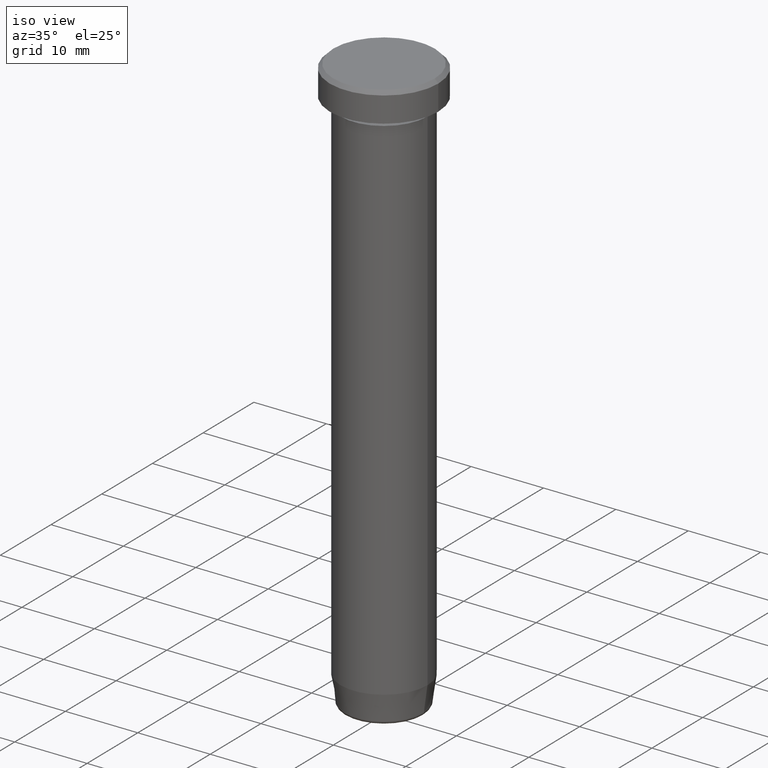
[diagram: clean part render]
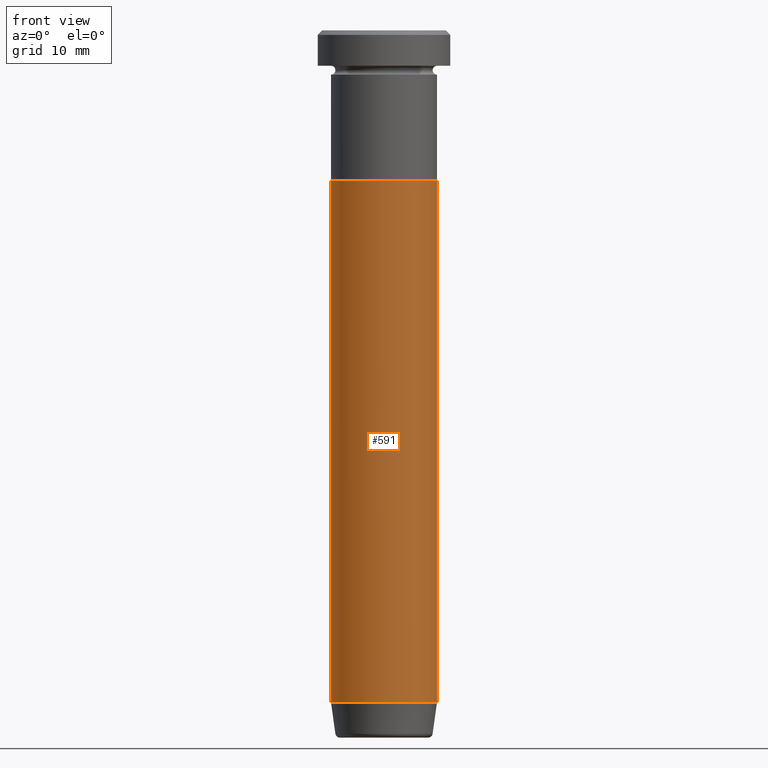
[diagram: tour spotlight — one face highlighted and labeled with its STEP entity id]
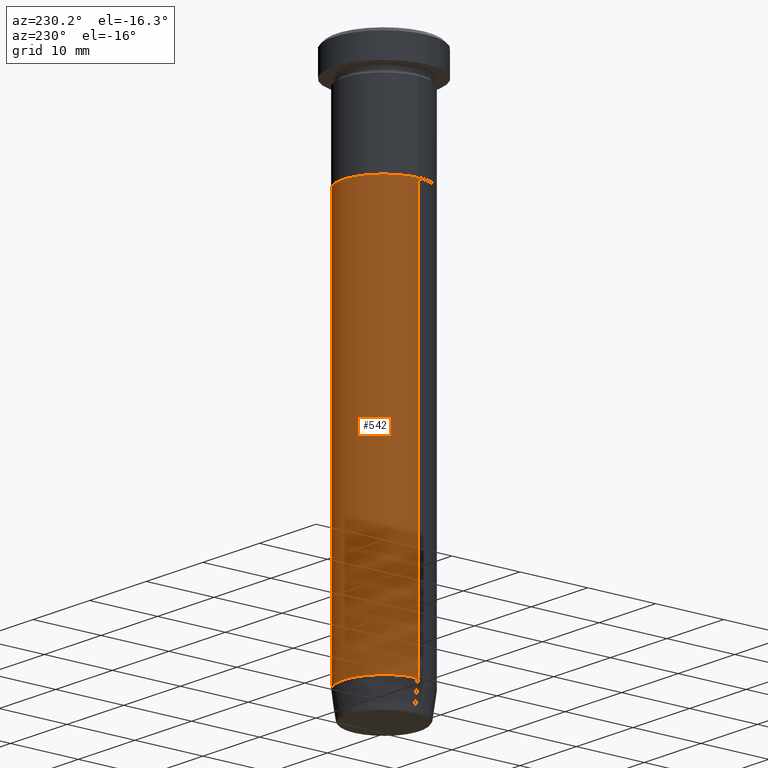
[diagram: tour spotlight — one face highlighted and labeled with its STEP entity id]
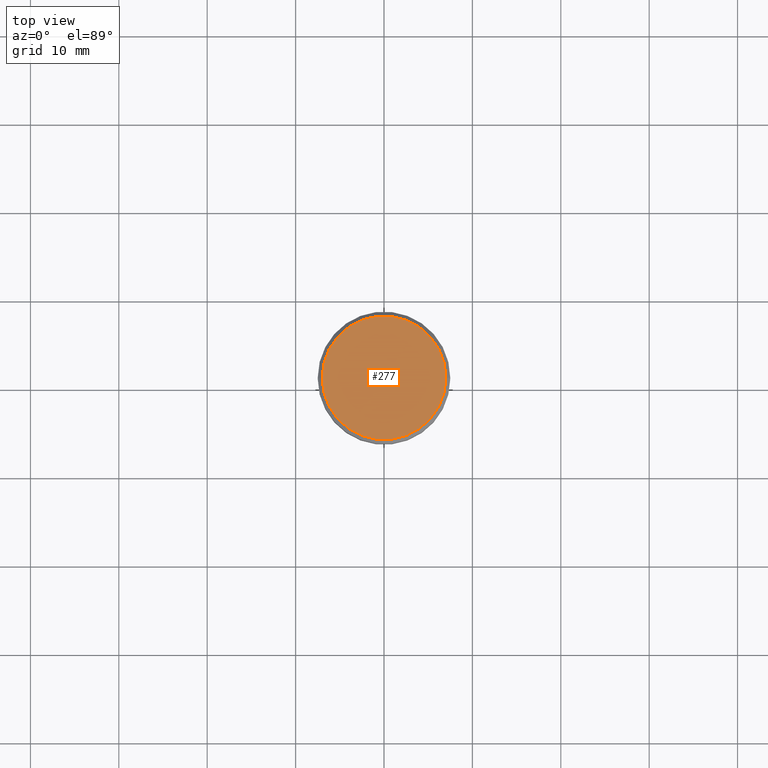
[diagram: tour spotlight — one face highlighted and labeled with its STEP entity id]
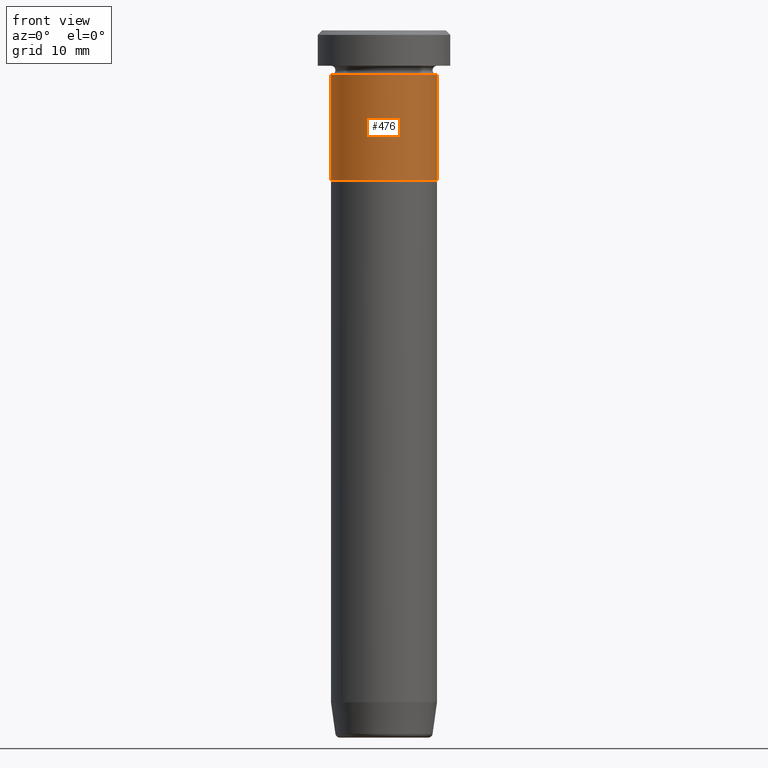
[diagram: tour spotlight — one face highlighted and labeled with its STEP entity id]
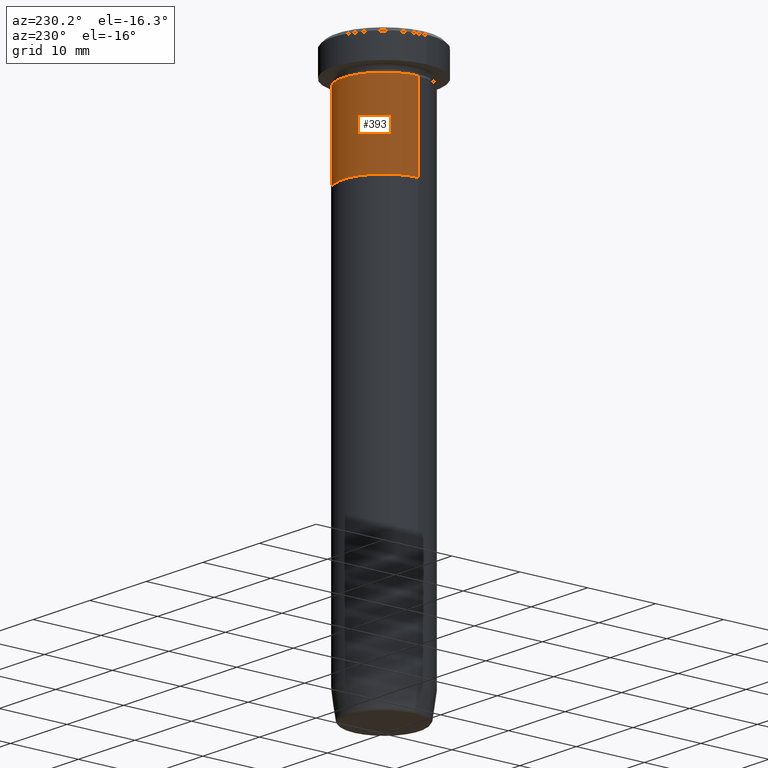
[diagram: tour spotlight — one face highlighted and labeled with its STEP entity id]
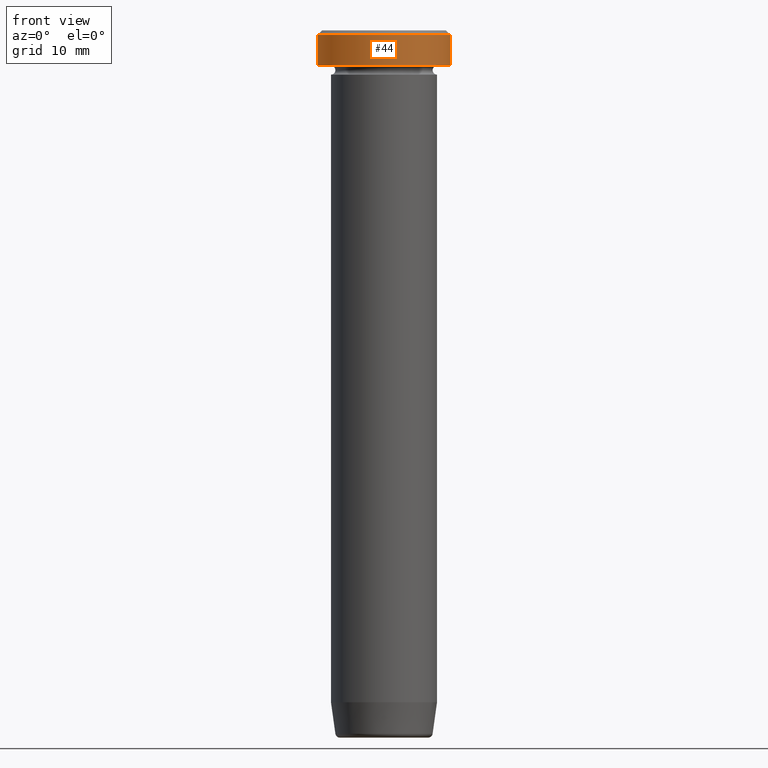
[diagram: tour spotlight — one face highlighted and labeled with its STEP entity id]
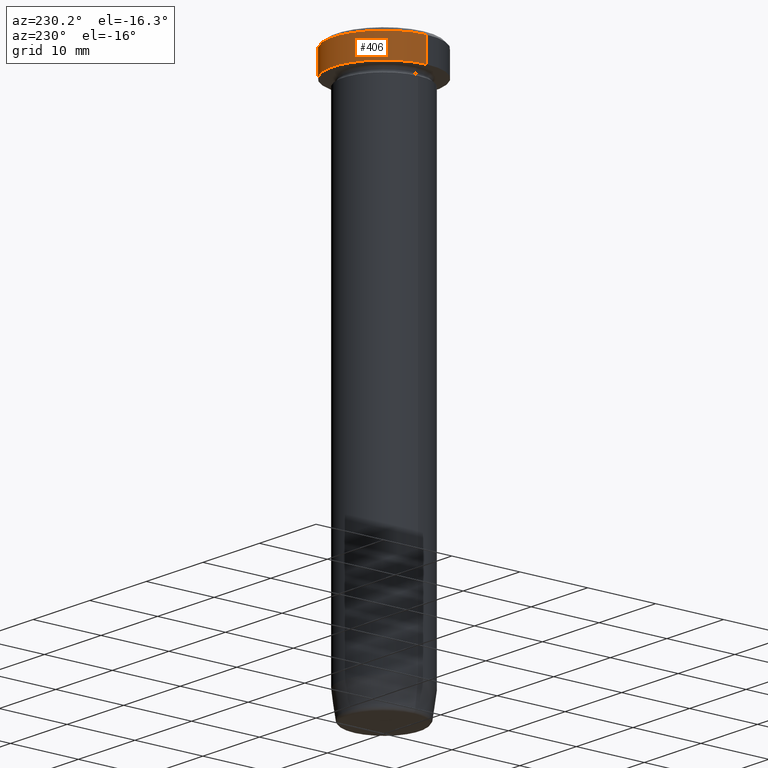
[diagram: tour spotlight — one face highlighted and labeled with its STEP entity id]
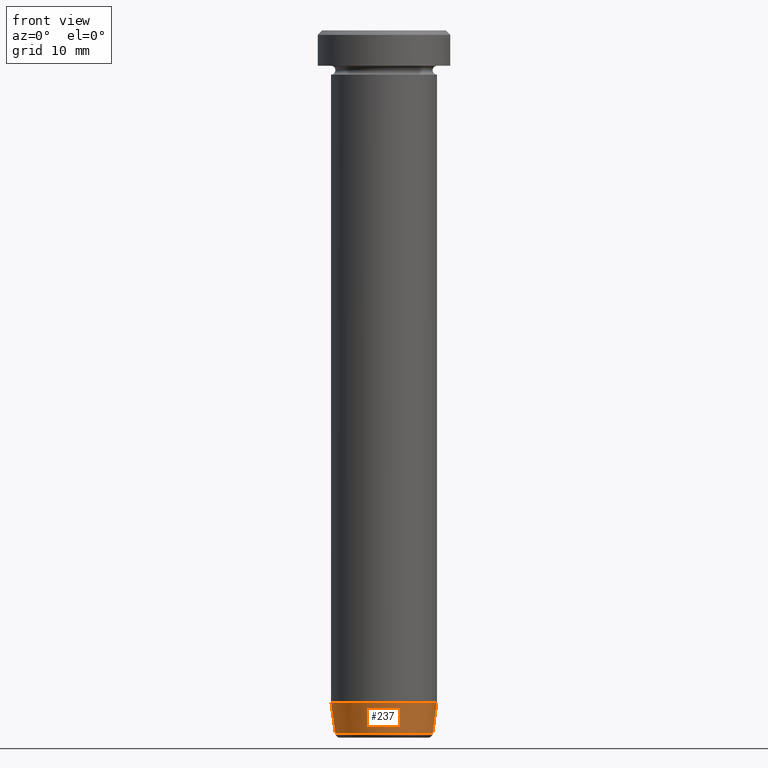
[diagram: tour spotlight — one face highlighted and labeled with its STEP entity id]
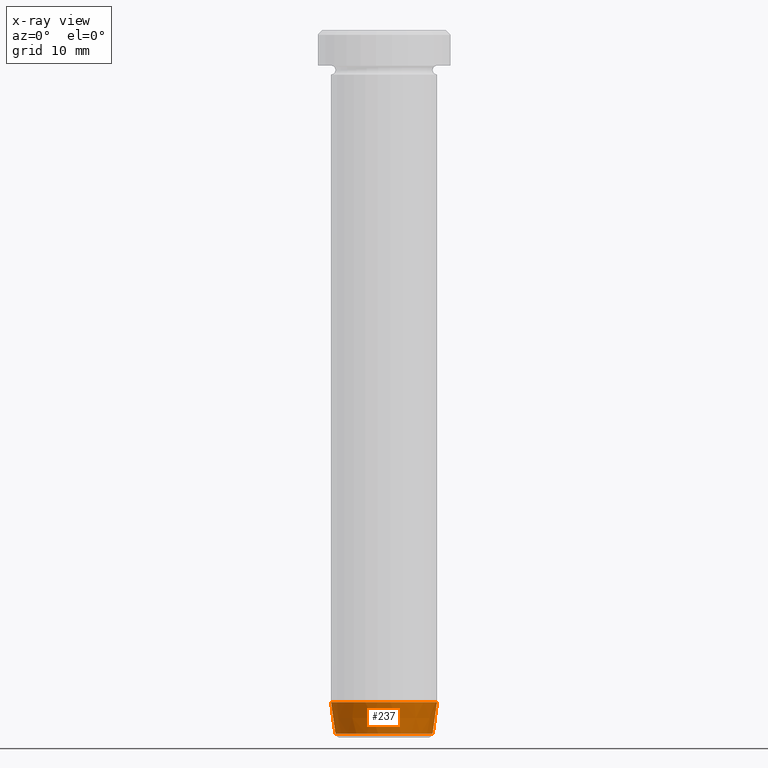
[diagram: x-ray of the same camera — body ghosted, this tour face saturated]
A machine part: a face-by-face anatomy tour. The part has 21 B-rep faces; the first image is the clean iso view, then the 8 largest visible faces are spotlighted one at a time (largest first), each with its STEP entity span.

Face 1 — front view, entity #591. In plain terms, the highlighted cylindrical surface (partial cylindrical patch) has radius 6 mm, axis along (-0, -0, 1).
Definition (entity closure, byte-faithful):
#5 = DIRECTION ( 'NONE',  ( 1.000000000000000000, 0.000000000000000000, 0.000000000000000000 ) ) ;
#8 = DIRECTION ( 'NONE',  ( 1.000000000000000000, 0.000000000000000000, 0.000000000000000000 ) ) ;
#11 = DIRECTION ( 'NONE',  ( 1.000000000000000000, 0.000000000000000000, 0.000000000000000000 ) ) ;
#15 = VECTOR ( 'NONE', #259, 1000.000000000000000 ) ;
#20 = DIRECTION ( 'NONE',  ( -0.000000000000000000, -0.000000000000000000, 1.000000000000000000 ) ) ;
#32 = ORIENTED_EDGE ( 'NONE', *, *, #347, .T. ) ;
#41 = LINE ( 'NONE', #85, #15 ) ;
#42 = CARTESIAN_POINT ( 'NONE',  ( 0.000000000000000000, 0.000000000000000000, -17.00000000000000000 ) ) ;
#85 = CARTESIAN_POINT ( 'NONE',  ( 6.000000000000000000, 0.000000000000000000, 0.000000000000000000 ) ) ;
#101 = EDGE_CURVE ( 'NONE', #352, #166, #136, .T. ) ;
#106 = VERTEX_POINT ( 'NONE', #589 ) ;
#136 = LINE ( 'NONE', #140, #371 ) ;
#140 = CARTESIAN_POINT ( 'NONE',  ( -6.000000000000000000, 7.347880794884119736E-16, 0.000000000000000000 ) ) ;
#152 = CARTESIAN_POINT ( 'NONE',  ( 0.000000000000000000, 0.000000000000000000, -76.00000000000000000 ) ) ;
#156 = CARTESIAN_POINT ( 'NONE',  ( -6.000000000000000000, 7.347880794884119736E-16, -76.00000000000000000 ) ) ;
#166 = VERTEX_POINT ( 'NONE', #377 ) ;
#217 = EDGE_CURVE ( 'NONE', #106, #484, #41, .T. ) ;
#254 = ORIENTED_EDGE ( 'NONE', *, *, #101, .F. ) ;
#259 = DIRECTION ( 'NONE',  ( -0.000000000000000000, -0.000000000000000000, 1.000000000000000000 ) ) ;
#269 = CARTESIAN_POINT ( 'NONE',  ( 0.000000000000000000, 0.000000000000000000, 0.000000000000000000 ) ) ;
#284 = FACE_OUTER_BOUND ( 'NONE', #556, .T. ) ;
#347 = EDGE_CURVE ( 'NONE', #352, #106, #423, .T. ) ;
#352 = VERTEX_POINT ( 'NONE', #156 ) ;
#367 = AXIS2_PLACEMENT_3D ( 'NONE', #269, #424, #8 ) ;
#371 = VECTOR ( 'NONE', #454, 1000.000000000000000 ) ;
#377 = CARTESIAN_POINT ( 'NONE',  ( -6.000000000000000000, 7.347880794884119736E-16, -17.00000000000000000 ) ) ;
#379 = DIRECTION ( 'NONE',  ( -0.000000000000000000, -0.000000000000000000, 1.000000000000000000 ) ) ;
#398 = AXIS2_PLACEMENT_3D ( 'NONE', #152, #20, #11 ) ;
#401 = CIRCLE ( 'NONE', #574, 6.000000000000000000 ) ;
#410 = ORIENTED_EDGE ( 'NONE', *, *, #594, .F. ) ;
#423 = CIRCLE ( 'NONE', #398, 6.000000000000000000 ) ;
#424 = DIRECTION ( 'NONE',  ( -0.000000000000000000, -0.000000000000000000, 1.000000000000000000 ) ) ;
#454 = DIRECTION ( 'NONE',  ( -0.000000000000000000, -0.000000000000000000, 1.000000000000000000 ) ) ;
#483 = CYLINDRICAL_SURFACE ( 'NONE', #367, 6.000000000000000000 ) ;
#484 = VERTEX_POINT ( 'NONE', #579 ) ;
#540 = ORIENTED_EDGE ( 'NONE', *, *, #217, .T. ) ;
#556 = EDGE_LOOP ( 'NONE', ( #254, #32, #540, #410 ) ) ;
#574 = AXIS2_PLACEMENT_3D ( 'NONE', #42, #379, #5 ) ;
#579 = CARTESIAN_POINT ( 'NONE',  ( 6.000000000000000000, 0.000000000000000000, -17.00000000000000000 ) ) ;
#589 = CARTESIAN_POINT ( 'NONE',  ( 6.000000000000000000, 0.000000000000000000, -76.00000000000000000 ) ) ;
#591 = ADVANCED_FACE ( 'NONE', ( #284 ), #483, .T. ) ;
#594 = EDGE_CURVE ( 'NONE', #166, #484, #401, .T. ) ;

Face 2 — auxiliary view, entity #542. In plain terms, the highlighted cylindrical surface (partial cylindrical patch) has radius 6 mm, axis along (-0, -0, 1).
Definition (entity closure, byte-faithful):
#15 = VECTOR ( 'NONE', #259, 1000.000000000000000 ) ;
#41 = LINE ( 'NONE', #85, #15 ) ;
#64 = ORIENTED_EDGE ( 'NONE', *, *, #217, .F. ) ;
#85 = CARTESIAN_POINT ( 'NONE',  ( 6.000000000000000000, 0.000000000000000000, 0.000000000000000000 ) ) ;
#101 = EDGE_CURVE ( 'NONE', #352, #166, #136, .T. ) ;
#106 = VERTEX_POINT ( 'NONE', #589 ) ;
#136 = LINE ( 'NONE', #140, #371 ) ;
#140 = CARTESIAN_POINT ( 'NONE',  ( -6.000000000000000000, 7.347880794884119736E-16, 0.000000000000000000 ) ) ;
#141 = ORIENTED_EDGE ( 'NONE', *, *, #261, .F. ) ;
#148 = CIRCLE ( 'NONE', #330, 6.000000000000000000 ) ;
#156 = CARTESIAN_POINT ( 'NONE',  ( -6.000000000000000000, 7.347880794884119736E-16, -76.00000000000000000 ) ) ;
#163 = CIRCLE ( 'NONE', #173, 6.000000000000000000 ) ;
#166 = VERTEX_POINT ( 'NONE', #377 ) ;
#167 = CYLINDRICAL_SURFACE ( 'NONE', #229, 6.000000000000000000 ) ;
#169 = CARTESIAN_POINT ( 'NONE',  ( 0.000000000000000000, 0.000000000000000000, 0.000000000000000000 ) ) ;
#173 = AXIS2_PLACEMENT_3D ( 'NONE', #557, #480, #225 ) ;
#188 = ORIENTED_EDGE ( 'NONE', *, *, #101, .T. ) ;
#208 = FACE_OUTER_BOUND ( 'NONE', #518, .T. ) ;
#217 = EDGE_CURVE ( 'NONE', #106, #484, #41, .T. ) ;
#225 = DIRECTION ( 'NONE',  ( 1.000000000000000000, 0.000000000000000000, 0.000000000000000000 ) ) ;
#229 = AXIS2_PLACEMENT_3D ( 'NONE', #169, #508, #349 ) ;
#238 = CARTESIAN_POINT ( 'NONE',  ( 0.000000000000000000, 0.000000000000000000, -76.00000000000000000 ) ) ;
#259 = DIRECTION ( 'NONE',  ( -0.000000000000000000, -0.000000000000000000, 1.000000000000000000 ) ) ;
#261 = EDGE_CURVE ( 'NONE', #484, #166, #163, .T. ) ;
#323 = EDGE_CURVE ( 'NONE', #106, #352, #148, .T. ) ;
#330 = AXIS2_PLACEMENT_3D ( 'NONE', #238, #430, #416 ) ;
#349 = DIRECTION ( 'NONE',  ( 1.000000000000000000, 0.000000000000000000, 0.000000000000000000 ) ) ;
#352 = VERTEX_POINT ( 'NONE', #156 ) ;
#371 = VECTOR ( 'NONE', #454, 1000.000000000000000 ) ;
#377 = CARTESIAN_POINT ( 'NONE',  ( -6.000000000000000000, 7.347880794884119736E-16, -17.00000000000000000 ) ) ;
#390 = ORIENTED_EDGE ( 'NONE', *, *, #323, .T. ) ;
#416 = DIRECTION ( 'NONE',  ( 1.000000000000000000, 0.000000000000000000, 0.000000000000000000 ) ) ;
#430 = DIRECTION ( 'NONE',  ( -0.000000000000000000, -0.000000000000000000, 1.000000000000000000 ) ) ;
#454 = DIRECTION ( 'NONE',  ( -0.000000000000000000, -0.000000000000000000, 1.000000000000000000 ) ) ;
#480 = DIRECTION ( 'NONE',  ( -0.000000000000000000, -0.000000000000000000, 1.000000000000000000 ) ) ;
#484 = VERTEX_POINT ( 'NONE', #579 ) ;
#508 = DIRECTION ( 'NONE',  ( -0.000000000000000000, -0.000000000000000000, 1.000000000000000000 ) ) ;
#518 = EDGE_LOOP ( 'NONE', ( #390, #188, #141, #64 ) ) ;
#542 = ADVANCED_FACE ( 'NONE', ( #208 ), #167, .T. ) ;
#557 = CARTESIAN_POINT ( 'NONE',  ( 0.000000000000000000, 0.000000000000000000, -17.00000000000000000 ) ) ;
#579 = CARTESIAN_POINT ( 'NONE',  ( 6.000000000000000000, 0.000000000000000000, -17.00000000000000000 ) ) ;
#589 = CARTESIAN_POINT ( 'NONE',  ( 6.000000000000000000, 0.000000000000000000, -76.00000000000000000 ) ) ;

Face 3 — top view, entity #277. In plain terms, the highlighted planar face has unit normal (0, -0, 1).
Definition (entity closure, byte-faithful):
#37 = AXIS2_PLACEMENT_3D ( 'NONE', #361, #88, #429 ) ;
#48 = VERTEX_POINT ( 'NONE', #536 ) ;
#88 = DIRECTION ( 'NONE',  ( -0.000000000000000000, -0.000000000000000000, 1.000000000000000000 ) ) ;
#124 = CARTESIAN_POINT ( 'NONE',  ( 7.000000000000001776, 8.878689293818310074E-16, 0.000000000000000000 ) ) ;
#214 = ORIENTED_EDGE ( 'NONE', *, *, #586, .T. ) ;
#230 = EDGE_CURVE ( 'NONE', #546, #48, #281, .T. ) ;
#270 = PLANE ( 'NONE',  #314 ) ;
#275 = CIRCLE ( 'NONE', #37, 7.000000000000001776 ) ;
#277 = ADVANCED_FACE ( 'NONE', ( #516 ), #270, .T. ) ;
#281 = CIRCLE ( 'NONE', #385, 7.000000000000001776 ) ;
#314 = AXIS2_PLACEMENT_3D ( 'NONE', #427, #460, #479 ) ;
#361 = CARTESIAN_POINT ( 'NONE',  ( 0.000000000000000000, 0.000000000000000000, 0.000000000000000000 ) ) ;
#385 = AXIS2_PLACEMENT_3D ( 'NONE', #554, #405, #462 ) ;
#404 = ORIENTED_EDGE ( 'NONE', *, *, #230, .T. ) ;
#405 = DIRECTION ( 'NONE',  ( -0.000000000000000000, -0.000000000000000000, 1.000000000000000000 ) ) ;
#427 = CARTESIAN_POINT ( 'NONE',  ( 0.000000000000000000, 0.000000000000000000, 0.000000000000000000 ) ) ;
#429 = DIRECTION ( 'NONE',  ( 1.000000000000000000, 0.000000000000000000, 0.000000000000000000 ) ) ;
#437 = EDGE_LOOP ( 'NONE', ( #214, #404 ) ) ;
#460 = DIRECTION ( 'NONE',  ( 0.000000000000000000, -0.000000000000000000, 1.000000000000000000 ) ) ;
#462 = DIRECTION ( 'NONE',  ( 1.000000000000000000, 0.000000000000000000, 0.000000000000000000 ) ) ;
#479 = DIRECTION ( 'NONE',  ( 1.000000000000000000, 0.000000000000000000, 0.000000000000000000 ) ) ;
#516 = FACE_OUTER_BOUND ( 'NONE', #437, .T. ) ;
#536 = CARTESIAN_POINT ( 'NONE',  ( -7.000000000000001776, 0.000000000000000000, 0.000000000000000000 ) ) ;
#546 = VERTEX_POINT ( 'NONE', #124 ) ;
#554 = CARTESIAN_POINT ( 'NONE',  ( 0.000000000000000000, 0.000000000000000000, 0.000000000000000000 ) ) ;
#586 = EDGE_CURVE ( 'NONE', #48, #546, #275, .T. ) ;

Face 4 — front view, entity #476. In plain terms, the highlighted cylindrical surface (partial cylindrical patch) has radius 6 mm, axis along (-0, -0, 1).
Definition (entity closure, byte-faithful):
#7 = DIRECTION ( 'NONE',  ( 1.000000000000000000, 0.000000000000000000, 0.000000000000000000 ) ) ;
#12 = FACE_OUTER_BOUND ( 'NONE', #202, .T. ) ;
#13 = EDGE_CURVE ( 'NONE', #587, #280, #412, .T. ) ;
#40 = ORIENTED_EDGE ( 'NONE', *, *, #164, .F. ) ;
#76 = DIRECTION ( 'NONE',  ( 1.000000000000000000, 0.000000000000000000, 0.000000000000000000 ) ) ;
#97 = CARTESIAN_POINT ( 'NONE',  ( 0.000000000000000000, 0.000000000000000000, -17.00000000000000000 ) ) ;
#108 = CYLINDRICAL_SURFACE ( 'NONE', #374, 6.000000000000000000 ) ;
#110 = DIRECTION ( 'NONE',  ( -0.000000000000000000, -0.000000000000000000, 1.000000000000000000 ) ) ;
#150 = AXIS2_PLACEMENT_3D ( 'NONE', #97, #375, #7 ) ;
#164 = EDGE_CURVE ( 'NONE', #587, #339, #470, .T. ) ;
#185 = LINE ( 'NONE', #187, #251 ) ;
#187 = CARTESIAN_POINT ( 'NONE',  ( 6.000000000000000000, 0.000000000000000000, 0.000000000000000000 ) ) ;
#189 = CARTESIAN_POINT ( 'NONE',  ( -6.000000000000000000, 7.347880794884119736E-16, 0.000000000000000000 ) ) ;
#195 = DIRECTION ( 'NONE',  ( -0.000000000000000000, -0.000000000000000000, 1.000000000000000000 ) ) ;
#202 = EDGE_LOOP ( 'NONE', ( #40, #320, #530, #590 ) ) ;
#251 = VECTOR ( 'NONE', #368, 1000.000000000000000 ) ;
#280 = VERTEX_POINT ( 'NONE', #327 ) ;
#287 = CARTESIAN_POINT ( 'NONE',  ( 0.000000000000000000, 0.000000000000000000, 0.000000000000000000 ) ) ;
#320 = ORIENTED_EDGE ( 'NONE', *, *, #13, .T. ) ;
#326 = EDGE_CURVE ( 'NONE', #280, #363, #185, .T. ) ;
#327 = CARTESIAN_POINT ( 'NONE',  ( 6.000000000000000000, 0.000000000000000000, -17.00000000000000000 ) ) ;
#339 = VERTEX_POINT ( 'NONE', #496 ) ;
#340 = DIRECTION ( 'NONE',  ( 1.000000000000000000, 0.000000000000000000, 0.000000000000000000 ) ) ;
#354 = EDGE_CURVE ( 'NONE', #339, #363, #408, .T. ) ;
#363 = VERTEX_POINT ( 'NONE', #383 ) ;
#368 = DIRECTION ( 'NONE',  ( -0.000000000000000000, -0.000000000000000000, 1.000000000000000000 ) ) ;
#374 = AXIS2_PLACEMENT_3D ( 'NONE', #287, #459, #76 ) ;
#375 = DIRECTION ( 'NONE',  ( -0.000000000000000000, -0.000000000000000000, 1.000000000000000000 ) ) ;
#383 = CARTESIAN_POINT ( 'NONE',  ( 6.000000000000000000, 0.000000000000000000, -5.000000000000000000 ) ) ;
#392 = CARTESIAN_POINT ( 'NONE',  ( 0.000000000000000000, 0.000000000000000000, -5.000000000000000000 ) ) ;
#408 = CIRCLE ( 'NONE', #566, 6.000000000000000000 ) ;
#412 = CIRCLE ( 'NONE', #150, 6.000000000000000000 ) ;
#420 = CARTESIAN_POINT ( 'NONE',  ( -6.000000000000000000, 7.347880794884119736E-16, -17.00000000000000000 ) ) ;
#459 = DIRECTION ( 'NONE',  ( -0.000000000000000000, -0.000000000000000000, 1.000000000000000000 ) ) ;
#470 = LINE ( 'NONE', #189, #521 ) ;
#476 = ADVANCED_FACE ( 'NONE', ( #12 ), #108, .T. ) ;
#496 = CARTESIAN_POINT ( 'NONE',  ( -6.000000000000000000, 7.347880794884119736E-16, -5.000000000000000000 ) ) ;
#521 = VECTOR ( 'NONE', #195, 1000.000000000000000 ) ;
#530 = ORIENTED_EDGE ( 'NONE', *, *, #326, .T. ) ;
#566 = AXIS2_PLACEMENT_3D ( 'NONE', #392, #110, #340 ) ;
#587 = VERTEX_POINT ( 'NONE', #420 ) ;
#590 = ORIENTED_EDGE ( 'NONE', *, *, #354, .F. ) ;

Face 5 — auxiliary view, entity #393. In plain terms, the highlighted cylindrical surface (partial cylindrical patch) has radius 6 mm, axis along (-0, -0, 1).
Definition (entity closure, byte-faithful):
#1 = EDGE_CURVE ( 'NONE', #280, #587, #499, .T. ) ;
#71 = EDGE_CURVE ( 'NONE', #363, #339, #197, .T. ) ;
#75 = DIRECTION ( 'NONE',  ( -0.000000000000000000, -0.000000000000000000, 1.000000000000000000 ) ) ;
#94 = AXIS2_PLACEMENT_3D ( 'NONE', #441, #571, #335 ) ;
#95 = ORIENTED_EDGE ( 'NONE', *, *, #326, .F. ) ;
#145 = CARTESIAN_POINT ( 'NONE',  ( 0.000000000000000000, 0.000000000000000000, -17.00000000000000000 ) ) ;
#162 = ORIENTED_EDGE ( 'NONE', *, *, #71, .F. ) ;
#164 = EDGE_CURVE ( 'NONE', #587, #339, #470, .T. ) ;
#171 = ORIENTED_EDGE ( 'NONE', *, *, #1, .T. ) ;
#185 = LINE ( 'NONE', #187, #251 ) ;
#187 = CARTESIAN_POINT ( 'NONE',  ( 6.000000000000000000, 0.000000000000000000, 0.000000000000000000 ) ) ;
#189 = CARTESIAN_POINT ( 'NONE',  ( -6.000000000000000000, 7.347880794884119736E-16, 0.000000000000000000 ) ) ;
#194 = FACE_OUTER_BOUND ( 'NONE', #580, .T. ) ;
#195 = DIRECTION ( 'NONE',  ( -0.000000000000000000, -0.000000000000000000, 1.000000000000000000 ) ) ;
#197 = CIRCLE ( 'NONE', #94, 6.000000000000000000 ) ;
#218 = AXIS2_PLACEMENT_3D ( 'NONE', #533, #75, #573 ) ;
#251 = VECTOR ( 'NONE', #368, 1000.000000000000000 ) ;
#252 = CYLINDRICAL_SURFACE ( 'NONE', #218, 6.000000000000000000 ) ;
#276 = DIRECTION ( 'NONE',  ( 1.000000000000000000, 0.000000000000000000, 0.000000000000000000 ) ) ;
#280 = VERTEX_POINT ( 'NONE', #327 ) ;
#288 = AXIS2_PLACEMENT_3D ( 'NONE', #145, #520, #276 ) ;
#326 = EDGE_CURVE ( 'NONE', #280, #363, #185, .T. ) ;
#327 = CARTESIAN_POINT ( 'NONE',  ( 6.000000000000000000, 0.000000000000000000, -17.00000000000000000 ) ) ;
#335 = DIRECTION ( 'NONE',  ( 1.000000000000000000, 0.000000000000000000, 0.000000000000000000 ) ) ;
#339 = VERTEX_POINT ( 'NONE', #496 ) ;
#363 = VERTEX_POINT ( 'NONE', #383 ) ;
#368 = DIRECTION ( 'NONE',  ( -0.000000000000000000, -0.000000000000000000, 1.000000000000000000 ) ) ;
#383 = CARTESIAN_POINT ( 'NONE',  ( 6.000000000000000000, 0.000000000000000000, -5.000000000000000000 ) ) ;
#393 = ADVANCED_FACE ( 'NONE', ( #194 ), #252, .T. ) ;
#420 = CARTESIAN_POINT ( 'NONE',  ( -6.000000000000000000, 7.347880794884119736E-16, -17.00000000000000000 ) ) ;
#433 = ORIENTED_EDGE ( 'NONE', *, *, #164, .T. ) ;
#441 = CARTESIAN_POINT ( 'NONE',  ( 0.000000000000000000, 0.000000000000000000, -5.000000000000000000 ) ) ;
#470 = LINE ( 'NONE', #189, #521 ) ;
#496 = CARTESIAN_POINT ( 'NONE',  ( -6.000000000000000000, 7.347880794884119736E-16, -5.000000000000000000 ) ) ;
#499 = CIRCLE ( 'NONE', #288, 6.000000000000000000 ) ;
#520 = DIRECTION ( 'NONE',  ( -0.000000000000000000, -0.000000000000000000, 1.000000000000000000 ) ) ;
#521 = VECTOR ( 'NONE', #195, 1000.000000000000000 ) ;
#533 = CARTESIAN_POINT ( 'NONE',  ( 0.000000000000000000, 0.000000000000000000, 0.000000000000000000 ) ) ;
#571 = DIRECTION ( 'NONE',  ( -0.000000000000000000, -0.000000000000000000, 1.000000000000000000 ) ) ;
#573 = DIRECTION ( 'NONE',  ( 1.000000000000000000, 0.000000000000000000, 0.000000000000000000 ) ) ;
#580 = EDGE_LOOP ( 'NONE', ( #171, #433, #162, #95 ) ) ;
#587 = VERTEX_POINT ( 'NONE', #420 ) ;

Face 6 — front view, entity #44. In plain terms, the highlighted cylindrical surface (partial cylindrical patch) has radius 7.5 mm, axis along (-0, -0, 1).
Definition (entity closure, byte-faithful):
#3 = FACE_OUTER_BOUND ( 'NONE', #372, .T. ) ;
#14 = CARTESIAN_POINT ( 'NONE',  ( 7.500000000000000000, 0.000000000000000000, 0.000000000000000000 ) ) ;
#19 = DIRECTION ( 'NONE',  ( 1.000000000000000000, 0.000000000000000000, 0.000000000000000000 ) ) ;
#24 = EDGE_CURVE ( 'NONE', #36, #119, #193, .T. ) ;
#28 = VECTOR ( 'NONE', #395, 1000.000000000000000 ) ;
#36 = VERTEX_POINT ( 'NONE', #418 ) ;
#44 = ADVANCED_FACE ( 'NONE', ( #3 ), #147, .T. ) ;
#55 = VECTOR ( 'NONE', #376, 1000.000000000000000 ) ;
#61 = ORIENTED_EDGE ( 'NONE', *, *, #519, .T. ) ;
#62 = DIRECTION ( 'NONE',  ( 1.000000000000000000, 0.000000000000000000, 0.000000000000000000 ) ) ;
#65 = DIRECTION ( 'NONE',  ( -0.000000000000000000, -0.000000000000000000, 1.000000000000000000 ) ) ;
#72 = CARTESIAN_POINT ( 'NONE',  ( 0.000000000000000000, 0.000000000000000000, 0.000000000000000000 ) ) ;
#84 = VERTEX_POINT ( 'NONE', #154 ) ;
#116 = AXIS2_PLACEMENT_3D ( 'NONE', #290, #65, #19 ) ;
#119 = VERTEX_POINT ( 'NONE', #504 ) ;
#147 = CYLINDRICAL_SURFACE ( 'NONE', #378, 7.500000000000000000 ) ;
#154 = CARTESIAN_POINT ( 'NONE',  ( 7.500000000000000000, 0.000000000000000000, -0.4999999999999987232 ) ) ;
#184 = CIRCLE ( 'NONE', #116, 7.500000000000000000 ) ;
#193 = LINE ( 'NONE', #469, #55 ) ;
#203 = DIRECTION ( 'NONE',  ( 0.000000000000000000, 0.000000000000000000, -1.000000000000000000 ) ) ;
#222 = CARTESIAN_POINT ( 'NONE',  ( 7.500000000000000000, 0.000000000000000000, -4.000000000000000000 ) ) ;
#224 = VERTEX_POINT ( 'NONE', #222 ) ;
#274 = CIRCLE ( 'NONE', #435, 7.500000000000000000 ) ;
#290 = CARTESIAN_POINT ( 'NONE',  ( 0.000000000000000000, 0.000000000000000000, -4.000000000000000000 ) ) ;
#332 = ORIENTED_EDGE ( 'NONE', *, *, #24, .F. ) ;
#336 = LINE ( 'NONE', #14, #28 ) ;
#360 = ORIENTED_EDGE ( 'NONE', *, *, #523, .T. ) ;
#372 = EDGE_LOOP ( 'NONE', ( #332, #61, #455, #360 ) ) ;
#373 = EDGE_CURVE ( 'NONE', #224, #84, #336, .T. ) ;
#376 = DIRECTION ( 'NONE',  ( -0.000000000000000000, -0.000000000000000000, 1.000000000000000000 ) ) ;
#378 = AXIS2_PLACEMENT_3D ( 'NONE', #72, #431, #394 ) ;
#394 = DIRECTION ( 'NONE',  ( 1.000000000000000000, 0.000000000000000000, 0.000000000000000000 ) ) ;
#395 = DIRECTION ( 'NONE',  ( -0.000000000000000000, -0.000000000000000000, 1.000000000000000000 ) ) ;
#418 = CARTESIAN_POINT ( 'NONE',  ( -7.500000000000000000, 9.184850993605147944E-16, -4.000000000000000000 ) ) ;
#431 = DIRECTION ( 'NONE',  ( -0.000000000000000000, -0.000000000000000000, 1.000000000000000000 ) ) ;
#435 = AXIS2_PLACEMENT_3D ( 'NONE', #569, #203, #62 ) ;
#455 = ORIENTED_EDGE ( 'NONE', *, *, #373, .T. ) ;
#469 = CARTESIAN_POINT ( 'NONE',  ( -7.500000000000000000, 9.184850993605147944E-16, 0.000000000000000000 ) ) ;
#504 = CARTESIAN_POINT ( 'NONE',  ( -7.500000000000000000, 9.184850993605147944E-16, -0.4999999999999987232 ) ) ;
#519 = EDGE_CURVE ( 'NONE', #36, #224, #184, .T. ) ;
#523 = EDGE_CURVE ( 'NONE', #84, #119, #274, .T. ) ;
#569 = CARTESIAN_POINT ( 'NONE',  ( 0.000000000000000000, 0.000000000000000000, -0.4999999999999987232 ) ) ;

Face 7 — auxiliary view, entity #406. In plain terms, the highlighted cylindrical surface (partial cylindrical patch) has radius 7.5 mm, axis along (-0, -0, 1).
Definition (entity closure, byte-faithful):
#14 = CARTESIAN_POINT ( 'NONE',  ( 7.500000000000000000, 0.000000000000000000, 0.000000000000000000 ) ) ;
#24 = EDGE_CURVE ( 'NONE', #36, #119, #193, .T. ) ;
#28 = VECTOR ( 'NONE', #395, 1000.000000000000000 ) ;
#34 = CIRCLE ( 'NONE', #170, 7.500000000000000000 ) ;
#35 = CIRCLE ( 'NONE', #155, 7.500000000000000000 ) ;
#36 = VERTEX_POINT ( 'NONE', #418 ) ;
#49 = AXIS2_PLACEMENT_3D ( 'NONE', #103, #485, #66 ) ;
#51 = EDGE_LOOP ( 'NONE', ( #58, #212, #109, #407 ) ) ;
#55 = VECTOR ( 'NONE', #376, 1000.000000000000000 ) ;
#58 = ORIENTED_EDGE ( 'NONE', *, *, #83, .T. ) ;
#66 = DIRECTION ( 'NONE',  ( 1.000000000000000000, 0.000000000000000000, 0.000000000000000000 ) ) ;
#83 = EDGE_CURVE ( 'NONE', #224, #36, #34, .T. ) ;
#84 = VERTEX_POINT ( 'NONE', #154 ) ;
#103 = CARTESIAN_POINT ( 'NONE',  ( 0.000000000000000000, 0.000000000000000000, 0.000000000000000000 ) ) ;
#104 = CARTESIAN_POINT ( 'NONE',  ( 0.000000000000000000, 0.000000000000000000, -0.4999999999999987232 ) ) ;
#109 = ORIENTED_EDGE ( 'NONE', *, *, #488, .T. ) ;
#119 = VERTEX_POINT ( 'NONE', #504 ) ;
#154 = CARTESIAN_POINT ( 'NONE',  ( 7.500000000000000000, 0.000000000000000000, -0.4999999999999987232 ) ) ;
#155 = AXIS2_PLACEMENT_3D ( 'NONE', #104, #157, #346 ) ;
#157 = DIRECTION ( 'NONE',  ( 0.000000000000000000, 0.000000000000000000, -1.000000000000000000 ) ) ;
#161 = DIRECTION ( 'NONE',  ( -0.000000000000000000, -0.000000000000000000, 1.000000000000000000 ) ) ;
#170 = AXIS2_PLACEMENT_3D ( 'NONE', #380, #161, #343 ) ;
#193 = LINE ( 'NONE', #469, #55 ) ;
#212 = ORIENTED_EDGE ( 'NONE', *, *, #24, .T. ) ;
#222 = CARTESIAN_POINT ( 'NONE',  ( 7.500000000000000000, 0.000000000000000000, -4.000000000000000000 ) ) ;
#224 = VERTEX_POINT ( 'NONE', #222 ) ;
#336 = LINE ( 'NONE', #14, #28 ) ;
#343 = DIRECTION ( 'NONE',  ( 1.000000000000000000, 0.000000000000000000, 0.000000000000000000 ) ) ;
#346 = DIRECTION ( 'NONE',  ( 1.000000000000000000, 0.000000000000000000, 0.000000000000000000 ) ) ;
#373 = EDGE_CURVE ( 'NONE', #224, #84, #336, .T. ) ;
#376 = DIRECTION ( 'NONE',  ( -0.000000000000000000, -0.000000000000000000, 1.000000000000000000 ) ) ;
#380 = CARTESIAN_POINT ( 'NONE',  ( 0.000000000000000000, 0.000000000000000000, -4.000000000000000000 ) ) ;
#395 = DIRECTION ( 'NONE',  ( -0.000000000000000000, -0.000000000000000000, 1.000000000000000000 ) ) ;
#406 = ADVANCED_FACE ( 'NONE', ( #446 ), #527, .T. ) ;
#407 = ORIENTED_EDGE ( 'NONE', *, *, #373, .F. ) ;
#418 = CARTESIAN_POINT ( 'NONE',  ( -7.500000000000000000, 9.184850993605147944E-16, -4.000000000000000000 ) ) ;
#446 = FACE_OUTER_BOUND ( 'NONE', #51, .T. ) ;
#469 = CARTESIAN_POINT ( 'NONE',  ( -7.500000000000000000, 9.184850993605147944E-16, 0.000000000000000000 ) ) ;
#485 = DIRECTION ( 'NONE',  ( -0.000000000000000000, -0.000000000000000000, 1.000000000000000000 ) ) ;
#488 = EDGE_CURVE ( 'NONE', #119, #84, #35, .T. ) ;
#504 = CARTESIAN_POINT ( 'NONE',  ( -7.500000000000000000, 9.184850993605147944E-16, -0.4999999999999987232 ) ) ;
#527 = CYLINDRICAL_SURFACE ( 'NONE', #49, 7.500000000000000000 ) ;

Face 8 — front view, entity #237. An x-ray twin of the same camera follows (body ghosted, this face saturated) — the face is partly hidden behind the body. In plain terms, the highlighted conical surface has half-angle 8 deg.
Definition (entity closure, byte-faithful):
#11 = DIRECTION ( 'NONE',  ( 1.000000000000000000, 0.000000000000000000, 0.000000000000000000 ) ) ;
#20 = DIRECTION ( 'NONE',  ( -0.000000000000000000, -0.000000000000000000, 1.000000000000000000 ) ) ;
#33 = DIRECTION ( 'NONE',  ( 0.1391731009600656876, 0.000000000000000000, 0.9902680687415703620 ) ) ;
#38 = DIRECTION ( 'NONE',  ( -0.000000000000000000, -0.000000000000000000, 1.000000000000000000 ) ) ;
#53 = CARTESIAN_POINT ( 'NONE',  ( -5.437836661190432963, 6.659429261412994003E-16, -80.00000000000000000 ) ) ;
#54 = ORIENTED_EDGE ( 'NONE', *, *, #347, .F. ) ;
#63 = CARTESIAN_POINT ( 'NONE',  ( 5.498327326653105196, 0.000000000000000000, -79.56958655048005369 ) ) ;
#74 = DIRECTION ( 'NONE',  ( -1.000000000000000000, 0.000000000000000000, 0.000000000000000000 ) ) ;
#106 = VERTEX_POINT ( 'NONE', #589 ) ;
#152 = CARTESIAN_POINT ( 'NONE',  ( 0.000000000000000000, 0.000000000000000000, -76.00000000000000000 ) ) ;
#156 = CARTESIAN_POINT ( 'NONE',  ( -6.000000000000000000, 7.347880794884119736E-16, -76.00000000000000000 ) ) ;
#180 = VERTEX_POINT ( 'NONE', #550 ) ;
#201 = VECTOR ( 'NONE', #33, 999.9999999999998863 ) ;
#233 = ORIENTED_EDGE ( 'NONE', *, *, #308, .F. ) ;
#237 = ADVANCED_FACE ( 'NONE', ( #353 ), #465, .T. ) ;
#258 = VERTEX_POINT ( 'NONE', #63 ) ;
#308 = EDGE_CURVE ( 'NONE', #180, #352, #425, .T. ) ;
#345 = CIRCLE ( 'NONE', #356, 5.498327326653105196 ) ;
#347 = EDGE_CURVE ( 'NONE', #352, #106, #423, .T. ) ;
#350 = ORIENTED_EDGE ( 'NONE', *, *, #552, .T. ) ;
#352 = VERTEX_POINT ( 'NONE', #156 ) ;
#353 = FACE_OUTER_BOUND ( 'NONE', #598, .T. ) ;
#355 = VECTOR ( 'NONE', #562, 999.9999999999998863 ) ;
#356 = AXIS2_PLACEMENT_3D ( 'NONE', #576, #495, #74 ) ;
#398 = AXIS2_PLACEMENT_3D ( 'NONE', #152, #20, #11 ) ;
#423 = CIRCLE ( 'NONE', #398, 6.000000000000000000 ) ;
#425 = LINE ( 'NONE', #53, #355 ) ;
#449 = CARTESIAN_POINT ( 'NONE',  ( 5.437836661190432963, 0.000000000000000000, -80.00000000000000000 ) ) ;
#451 = LINE ( 'NONE', #449, #201 ) ;
#465 = CONICAL_SURFACE ( 'NONE', #584, 5.437836661190432963, 0.1396263401595466136 ) ;
#495 = DIRECTION ( 'NONE',  ( -0.000000000000000000, -0.000000000000000000, 1.000000000000000000 ) ) ;
#501 = ORIENTED_EDGE ( 'NONE', *, *, #534, .T. ) ;
#528 = DIRECTION ( 'NONE',  ( 1.000000000000000000, 0.000000000000000000, 0.000000000000000000 ) ) ;
#534 = EDGE_CURVE ( 'NONE', #180, #258, #345, .T. ) ;
#548 = CARTESIAN_POINT ( 'NONE',  ( 0.000000000000000000, 0.000000000000000000, -80.00000000000000000 ) ) ;
#550 = CARTESIAN_POINT ( 'NONE',  ( -5.498327326653105196, 7.040694878067134723E-16, -79.56958655048005369 ) ) ;
#552 = EDGE_CURVE ( 'NONE', #258, #106, #451, .T. ) ;
#562 = DIRECTION ( 'NONE',  ( -0.1391731009600656876, 1.704378926181559063E-17, 0.9902680687415703620 ) ) ;
#576 = CARTESIAN_POINT ( 'NONE',  ( 0.000000000000000000, 0.000000000000000000, -79.56958655048005369 ) ) ;
#584 = AXIS2_PLACEMENT_3D ( 'NONE', #548, #38, #528 ) ;
#589 = CARTESIAN_POINT ( 'NONE',  ( 6.000000000000000000, 0.000000000000000000, -76.00000000000000000 ) ) ;
#598 = EDGE_LOOP ( 'NONE', ( #233, #501, #350, #54 ) ) ;